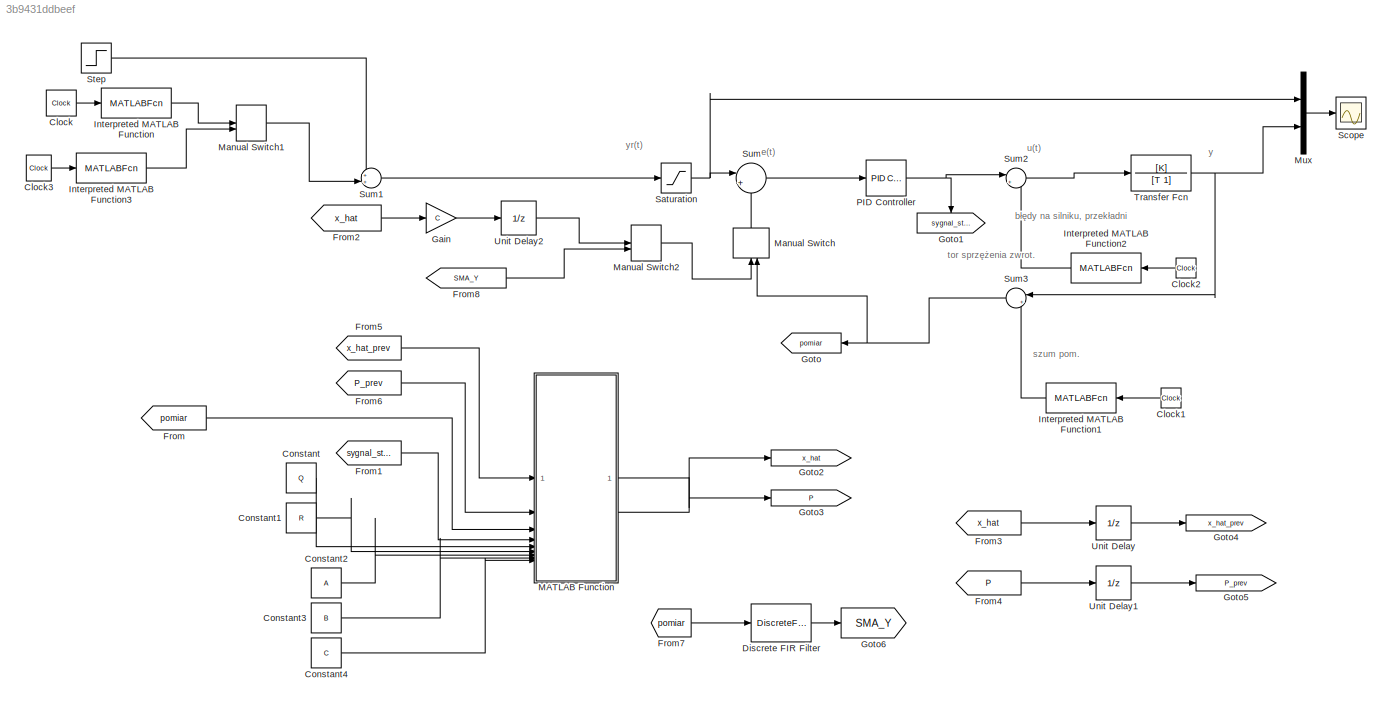
MODEL slx_3b9431ddbeef
KIND model
CONFIG AbsTol = auto
CONFIG EnableMultiTasking = off
CONFIG FixedStep = 0.001
CONFIG MaxStep = auto
CONFIG MinStep = auto
CONFIG RelTol = 1e-3
CONFIG SampleTimeConstraint = Unconstrained
CONFIG SolverName = ode4
CONFIG StartTime = 0.0
CONFIG StopTime = 30
BLOCK [Clock] Clock
  Decimation = 100
BLOCK [Clock] Clock1
  NameLocation = top
BLOCK [Clock] Clock2
  NameLocation = top
BLOCK [Clock] Clock3
  Decimation = 100
BLOCK [Constant] Constant
  Value = Q
BLOCK [Constant] Constant1
  Value = R
BLOCK [Constant] Constant2
  Value = A
BLOCK [Constant] Constant3
  Value = B
BLOCK [Constant] Constant4
  Value = C
BLOCK [DiscreteFir] Discrete FIR Filter
  Coefficients = [ones(1,8)/8]
  InputPortMap = u0
  OutputPortMap = o0
BLOCK [From] From
  GotoTag = pomiar
BLOCK [From] From1
  GotoTag = sygnal_ster
BLOCK [From] From2
  GotoTag = x_hat
BLOCK [From] From3
  GotoTag = x_hat
BLOCK [From] From4
  GotoTag = P
BLOCK [From] From5
  GotoTag = x_hat_prev
BLOCK [From] From6
  GotoTag = P_prev
BLOCK [From] From7
  GotoTag = pomiar
BLOCK [From] From8
  GotoTag = SMA_Y
BLOCK [Gain] Gain
  Gain = C
  Multiplication = Matrix(K*u)
BLOCK [Goto] Goto
  GotoTag = pomiar
  NameLocation = top
BLOCK [Goto] Goto1
  GotoTag = sygnal_ster
  NameLocation = left
BLOCK [Goto] Goto2
  GotoTag = x_hat
BLOCK [Goto] Goto3
  GotoTag = P
BLOCK [Goto] Goto4
  GotoTag = x_hat_prev
BLOCK [Goto] Goto5
  GotoTag = P_prev
BLOCK [Goto] Goto6
  GotoTag = SMA_Y
BLOCK [MATLABFcn] Interpreted MATLAB Function
  MATLABFcn = sinus_transport
BLOCK [MATLABFcn] Interpreted MATLAB Function1
  MATLABFcn = zaklocenia_random_delayed
  NameLocation = top
BLOCK [MATLABFcn] Interpreted MATLAB Function2
  MATLABFcn = zaklocenia_gauss_delayed
  NameLocation = top
BLOCK [MATLABFcn] Interpreted MATLAB Function3
  MATLABFcn = polynomial_transport
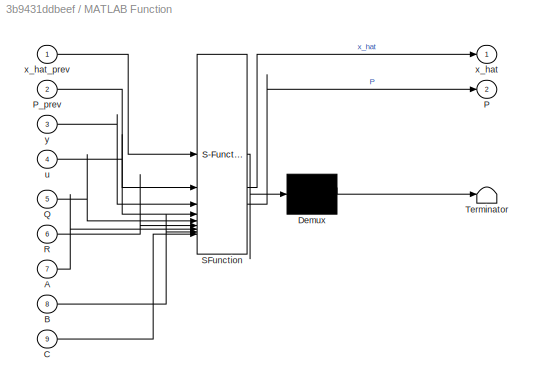
BLOCK [SubSystem] MATLAB Function
  ErrorFcn = Stateflow.Translate.translate
  PermitHierarchicalResolution = ExplicitOnly
  SFBlockType = MATLAB Function
  TreatAsAtomicUnit = on
BLOCK [Demux] MATLAB Function/ Demux 
  Outputs = 1
BLOCK [S-Function] MATLAB Function/ SFunction 
  EnableBusSupport = off
  FunctionName = sf_sfun
  PortCounts = [9 3]
  SFcnIsStateOwnerBlock = off
  SFunctionDeploymentMode = off
  Tag = Stateflow S-Function 2
BLOCK [Terminator] MATLAB Function/ Terminator 
BLOCK [Inport] MATLAB Function/A
  Port = 7
BLOCK [Inport] MATLAB Function/B
  Port = 8
BLOCK [Inport] MATLAB Function/C
  Port = 9
BLOCK [Outport] MATLAB Function/P
  Port = 2
BLOCK [Inport] MATLAB Function/P_prev
  Port = 2
BLOCK [Inport] MATLAB Function/Q
  Port = 5
BLOCK [Inport] MATLAB Function/R
  Port = 6
BLOCK [Inport] MATLAB Function/u
  Port = 4
BLOCK [Outport] MATLAB Function/x_hat
BLOCK [Inport] MATLAB Function/x_hat_prev
BLOCK [Inport] MATLAB Function/y
  Port = 3
BLOCK [ManualSwitch] Manual Switch
  NameLocation = right
BLOCK [ManualSwitch] Manual Switch1
BLOCK [ManualSwitch] Manual Switch2
  CurrentSetting = 0
BLOCK [Mux] Mux
  DisplayOption = bar
  Inputs = 2
BLOCK [Reference] PID Controller  REF=slpidlib/PID Controller
  LibrarySourceBlock = simulink/Continuous/PID Controller
  SourceBlock = slpidlib/PID Controller
  SourceType = PID 1dof
BLOCK [Saturate] Saturation
  LowerLimit = 0
  UpperLimit = 250
BLOCK [Scope] Scope
  ActiveDisplayYMaximum = 65.906616299895546
  ActiveDisplayYMinimum = 51.154067014555928
  Floating = off
  GraphicalSettings = {"AxesScalingProperties":{"AlignXAxis":"Center","AlignYAxis":"Center","AutoScaleXAxisLimits":false,"AxesScaling":"Manual","AxesScalingNumUpdates":10,"ExpandOnly":true,"ScaleAxesLimitsAtStop":false,"XAxisDataRange":100,"YAxisDataRange":80},"DisplayProperties":{"ColorOrder":["auto","auto","auto","auto","auto","auto","auto","auto","auto","auto","auto","auto","auto","auto","auto","auto","auto","auto",...<+2137ch>
  MultipleDisplayCache = [{"MaxYLimMag":81.901954255318188,"MaxYLimReal":65.906616299895546,"MinYLimMag":0,"MinYLimReal":51.154067014555928,"PlotAsMagnitudePhase":false,"ShowGrid":true,"ShowLegend":false,"Title":"%<SignalLabel>","YLabel":""}]
  NumInputPorts = 1
  ScopeFrameLocation = window
  WasSavedAsWebScope = on
  WindowPosition = [2062.000000,35.000000,958.000000,1000.000000,]
BLOCK [Step] Step
  After = 40
  SampleTime = 0
BLOCK [Sum] Sum
  Inputs = |+-
BLOCK [Sum] Sum1
  Inputs = ++|
BLOCK [Sum] Sum2
  Inputs = |++
BLOCK [Sum] Sum3
  Inputs = |++
  NameLocation = top
BLOCK [TransferFcn] Transfer Fcn
  Denominator = [T 1]
  Numerator = [K]
BLOCK [UnitDelay] Unit Delay
  HasFrameUpgradeWarning = on
  SampleTime = -1
BLOCK [UnitDelay] Unit Delay1
  HasFrameUpgradeWarning = on
  SampleTime = -1
BLOCK [UnitDelay] Unit Delay2
  HasFrameUpgradeWarning = on
  SampleTime = -1
ANNOTATION (root): błędy na silniku, przekładni
ANNOTATION (root): e(t)
ANNOTATION (root): szum pom.
ANNOTATION (root): tor sprzężenia zwrot.
ANNOTATION (root): u(t)
ANNOTATION (root): y
ANNOTATION (root): yr(t)
LINE Clock1:1 -> Interpreted MATLAB Function1:1
LINE Clock2:1 -> Interpreted MATLAB Function2:1
LINE Clock3:1 -> Interpreted MATLAB Function3:1
LINE Clock:1 -> Interpreted MATLAB Function:1
LINE Constant1:1 -> MATLAB Function:6
LINE Constant2:1 -> MATLAB Function:7
LINE Constant3:1 -> MATLAB Function:8
LINE Constant4:1 -> MATLAB Function:9
LINE Constant:1 -> MATLAB Function:5
LINE Discrete FIR Filter:1 -> Goto6:1
LINE From1:1 -> MATLAB Function:4
LINE From2:1 -> Gain:1
LINE From3:1 -> Unit Delay:1
LINE From4:1 -> Unit Delay1:1
LINE From5:1 -> MATLAB Function:1
LINE From6:1 -> MATLAB Function:2
LINE From7:1 -> Discrete FIR Filter:1
LINE From8:1 -> Manual Switch2:2
LINE From:1 -> MATLAB Function:3
LINE Gain:1 -> Unit Delay2:1
LINE Interpreted MATLAB Function1:1 -> Sum3:2
LINE Interpreted MATLAB Function2:1 -> Sum2:2
LINE Interpreted MATLAB Function3:1 -> Manual Switch1:2
LINE Interpreted MATLAB Function:1 -> Manual Switch1:1
LINE MATLAB Function:1 -> Goto2:1
LINE MATLAB Function:2 -> Goto3:1
LINE Manual Switch1:1 -> Sum1:2
LINE Manual Switch2:1 -> Manual Switch:1
LINE Manual Switch:1 -> Sum:2
LINE Mux:1 -> Scope:1
NET PID Controller:1 -> Goto1:1, Sum2:1
NET Saturation:1 -> Mux:1, Sum:1
LINE Step:1 -> Sum1:1
LINE Sum1:1 -> Saturation:1
LINE Sum2:1 -> Transfer Fcn:1
NET Sum3:1 -> Goto:1, Manual Switch:2
LINE Sum:1 -> PID Controller:1
NET Transfer Fcn:1 -> Mux:2, Sum3:1
LINE Unit Delay1:1 -> Goto5:1
LINE Unit Delay2:1 -> Manual Switch2:1
LINE Unit Delay:1 -> Goto4:1
note: NET lines group one-source signal fan-out (src -> all destinations, sorted); 1:1 wires keep LINE
CHART MATLAB Function states=1 transitions=1
  STATE_LABEL 'eML_blk_kernel()'
  STATE_LABEL "SCRIPT:\nfunction [x_hat, P] = kalman_step(x_hat_prev, P_prev, y, u, Q, R, A, B, C)\n\nC = C(:)';\n\nx_pred = A*x_hat_prev + B*u;\n\nP_pred = A*P_prev*A' + Q;\n\nK_kalman = P_pred * C' / (C * P_pred * C' + R);\nx_hat = x_pred + K_kalman * (y - C * x_pred);\nP = (eye(2) - K_kalman * C) * P_pred;\n\n\n\nend\n"
CHART  states=0 transitions=0
